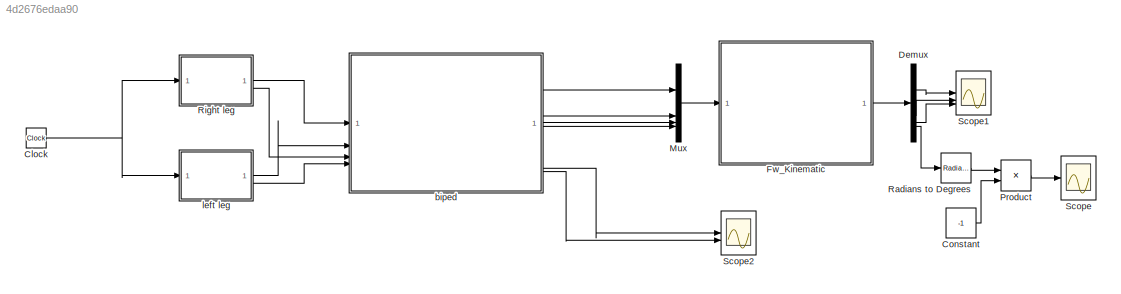
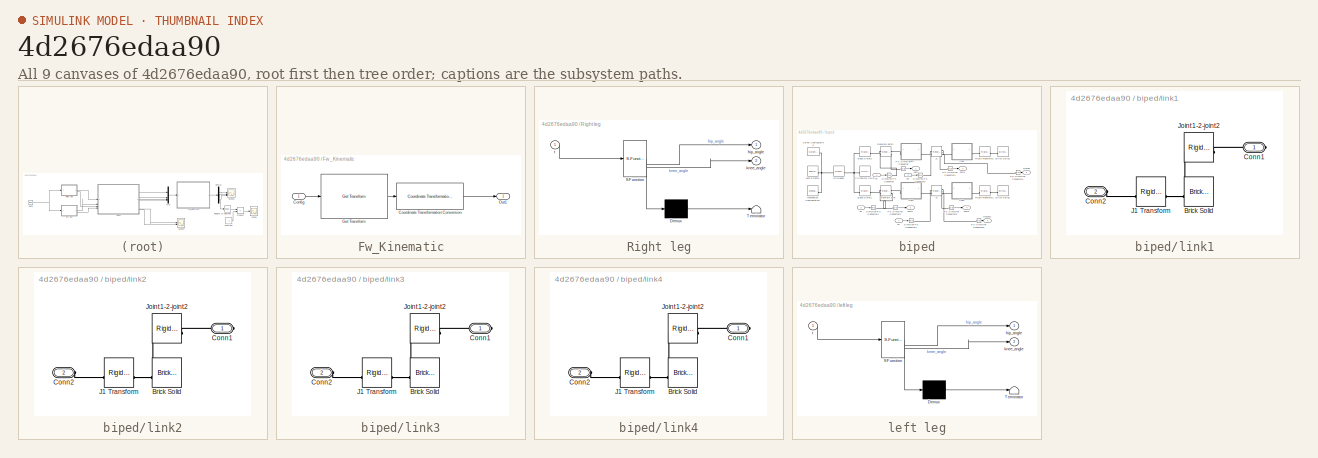
[diagram: thumbnail index - all 9 canvases of the model, root first then tree order]
MODEL slx_4d2676edaa90
KIND model
CONFIG AbsTol = auto
CONFIG EnableMultiTasking = off
CONFIG FixedStep = auto
CONFIG MaxStep = auto
CONFIG MinStep = auto
CONFIG RelTol = 1e-3
CONFIG SampleTimeConstraint = Unconstrained
CONFIG SolverName = VariableStepAuto
CONFIG StartTime = 0.0
CONFIG StopTime = 10
BLOCK [Clock] Clock
BLOCK [Constant] Constant
  Value = -1
BLOCK [Demux] Demux
BLOCK [SubSystem] Fw_Kinematic
BLOCK [Inport] Fw_Kinematic/Config
BLOCK [Reference] Fw_Kinematic/Coordinate Transformation Conversion  REF=robotcorelib/Coordinate Transformation Conversion
  LibrarySourceBlock = robotutilslib/Coordinate Transformation Conversion
  SourceBlock = robotcorelib/Coordinate Transformation Conversion
  SourceType = robotics.slcore.internal.block.CoordinateTransformationConversion
BLOCK [Reference] Fw_Kinematic/Get Transform  REF=robotmaniplib/Get Transform
  SourceBlock = robotmaniplib/Get Transform
  SourceType = Get Transform
BLOCK [Outport] Fw_Kinematic/Out1
BLOCK [Mux] Mux
  DisplayOption = bar
BLOCK [Product] Product
BLOCK [Reference] Radians to Degrees  REF=simulink_extras/Transformations/Radians
to Degrees
  SourceBlock = simulink_extras/Transformations/Radians\nto Degrees
  SourceType = RadiansToDegrees
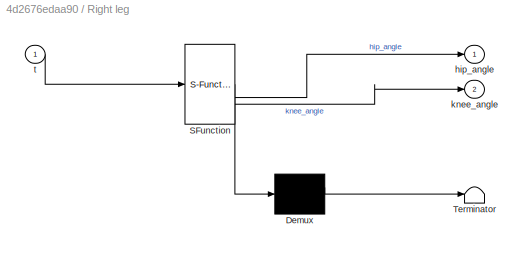
BLOCK [SubSystem] Right leg
  ErrorFcn = Stateflow.Translate.translate
  PermitHierarchicalResolution = ExplicitOnly
  SFBlockType = MATLAB Function
  TreatAsAtomicUnit = on
BLOCK [Demux] Right leg/ Demux 
  Outputs = 1
BLOCK [S-Function] Right leg/ SFunction 
  EnableBusSupport = on
  FunctionName = sf_sfun
  PortCounts = [1 3]
  SFcnIsStateOwnerBlock = off
  SFunctionDeploymentMode = off
  Tag = Stateflow S-Function 2
BLOCK [Terminator] Right leg/ Terminator 
BLOCK [Outport] Right leg/hip_angle
BLOCK [Outport] Right leg/knee_angle
  Port = 2
BLOCK [Inport] Right leg/t
BLOCK [Scope] Scope
  Floating = off
  NumInputPorts = 1
  ScopeSpecificationString = Simulink.scopes.TimeScopeBlockCfg('CurrentConfiguration', extmgr.ConfigurationSet(extmgr.Configuration('Core','General UI',true),extmgr.Configuration('Core','Source UI',true),extmgr.Configuration('Sources','WiredSimulink',true),extmgr.Configuration('Visuals','Time Domain',true,'SerializedDisplays',{struct('MinYLimReal','-186.07636','MaxYLimReal','-125.17572','YLabelReal','','MinYLimMag',' 0.00000'...<+1780ch>
BLOCK [Scope] Scope1
  Floating = off
  NumInputPorts = 3
  ScopeSpecificationString = Simulink.scopes.TimeScopeBlockCfg('CurrentConfiguration', extmgr.ConfigurationSet(extmgr.Configuration('Core','General UI',true),extmgr.Configuration('Core','Source UI',true),extmgr.Configuration('Sources','WiredSimulink',true,'DataLoggingVariableName','ScopeData1'),extmgr.Configuration('Visuals','Time Domain',true,'SerializedDisplays',{struct('MinYLimReal','-0.0000000000000000000000000000023','Ma...<+3332ch>
BLOCK [Scope] Scope2
  Floating = off
  NumInputPorts = 2
  ScopeSpecificationString = Simulink.scopes.TimeScopeBlockCfg('CurrentConfiguration', extmgr.ConfigurationSet(extmgr.Configuration('Core','General UI',true),extmgr.Configuration('Core','Source UI',true),extmgr.Configuration('Sources','WiredSimulink',true,'DataLoggingVariableName','ScopeData2'),extmgr.Configuration('Visuals','Time Domain',true,'SerializedDisplays',{struct('MinYLimReal','-0.54731','MaxYLimReal','0.09637','YLab...<+3317ch>
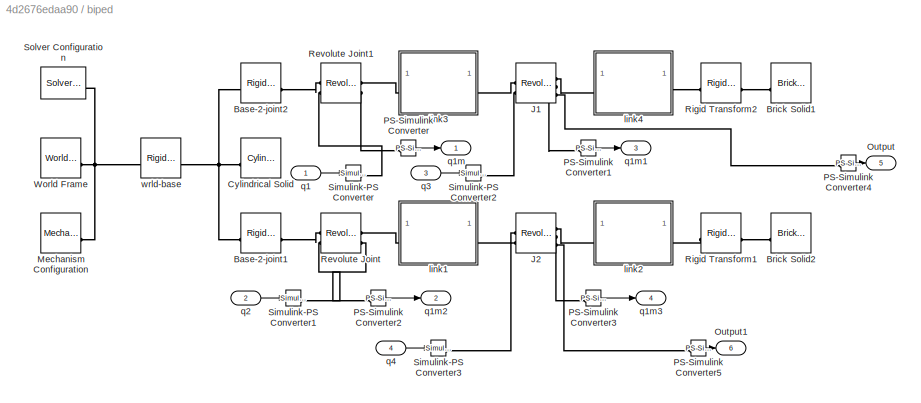
BLOCK [SubSystem] biped
BLOCK [Reference] biped/Base-2-joint1  REF=sm_lib/Frames and
Transforms/Rigid
Transform
  SourceBlock = sm_lib/Frames and\nTransforms/Rigid\nTransform
  SourceType = Rigid\nTransform
BLOCK [Reference] biped/Base-2-joint2  REF=sm_lib/Frames and
Transforms/Rigid
Transform
  SourceBlock = sm_lib/Frames and\nTransforms/Rigid\nTransform
  SourceType = Rigid\nTransform
BLOCK [Reference] biped/Brick Solid1  REF=sm_lib/Body Elements/Brick Solid
  SourceBlock = sm_lib/Body Elements/Brick Solid
  SourceType = Brick Solid
BLOCK [Reference] biped/Brick Solid2  REF=sm_lib/Body Elements/Brick Solid
  SourceBlock = sm_lib/Body Elements/Brick Solid
  SourceType = Brick Solid
BLOCK [Reference] biped/Cylindrical Solid  REF=sm_lib/Body Elements/Cylindrical Solid
  SourceBlock = sm_lib/Body Elements/Cylindrical Solid
  SourceType = Cylindrical Solid
BLOCK [Reference] biped/J1  REF=sm_lib/Joints/Revolute Joint
  SourceBlock = sm_lib/Joints/Revolute Joint
  SourceType = Revolute Joint
BLOCK [Reference] biped/J2  REF=sm_lib/Joints/Revolute Joint
  SourceBlock = sm_lib/Joints/Revolute Joint
  SourceType = Revolute Joint
BLOCK [Reference] biped/Mechanism Configuration  REF=sm_lib/Utilities/Mechanism
Configuration
  SourceBlock = sm_lib/Utilities/Mechanism\nConfiguration
  SourceType = Mechanism\nConfiguration
BLOCK [Outport] biped/Output
  Port = 5
BLOCK [Outport] biped/Output1
  Port = 6
BLOCK [Reference] biped/PS-Simulink Converter  REF=nesl_utility/PS-Simulink
Converter
  SourceBlock = nesl_utility/PS-Simulink\nConverter
  SourceType = PS-Simulink\nConverter
BLOCK [Reference] biped/PS-Simulink Converter1  REF=nesl_utility/PS-Simulink
Converter
  SourceBlock = nesl_utility/PS-Simulink\nConverter
  SourceType = PS-Simulink\nConverter
BLOCK [Reference] biped/PS-Simulink Converter2  REF=nesl_utility/PS-Simulink
Converter
  SourceBlock = nesl_utility/PS-Simulink\nConverter
  SourceType = PS-Simulink\nConverter
BLOCK [Reference] biped/PS-Simulink Converter3  REF=nesl_utility/PS-Simulink
Converter
  SourceBlock = nesl_utility/PS-Simulink\nConverter
  SourceType = PS-Simulink\nConverter
BLOCK [Reference] biped/PS-Simulink Converter4  REF=nesl_utility/PS-Simulink
Converter
  SourceBlock = nesl_utility/PS-Simulink\nConverter
  SourceType = PS-Simulink\nConverter
BLOCK [Reference] biped/PS-Simulink Converter5  REF=nesl_utility/PS-Simulink
Converter
  SourceBlock = nesl_utility/PS-Simulink\nConverter
  SourceType = PS-Simulink\nConverter
BLOCK [Reference] biped/Revolute Joint  REF=sm_lib/Joints/Revolute Joint
  SourceBlock = sm_lib/Joints/Revolute Joint
  SourceType = Revolute Joint
BLOCK [Reference] biped/Revolute Joint1  REF=sm_lib/Joints/Revolute Joint
  SourceBlock = sm_lib/Joints/Revolute Joint
  SourceType = Revolute Joint
BLOCK [Reference] biped/Rigid Transform1  REF=sm_lib/Frames and
Transforms/Rigid
Transform
  SourceBlock = sm_lib/Frames and\nTransforms/Rigid\nTransform
  SourceType = Rigid\nTransform
BLOCK [Reference] biped/Rigid Transform2  REF=sm_lib/Frames and
Transforms/Rigid
Transform
  SourceBlock = sm_lib/Frames and\nTransforms/Rigid\nTransform
  SourceType = Rigid\nTransform
BLOCK [Reference] biped/Simulink-PS Converter  REF=nesl_utility/Simulink-PS
Converter
  SourceBlock = nesl_utility/Simulink-PS\nConverter
  SourceType = Simulink-PS\nConverter
BLOCK [Reference] biped/Simulink-PS Converter1  REF=nesl_utility/Simulink-PS
Converter
  SourceBlock = nesl_utility/Simulink-PS\nConverter
  SourceType = Simulink-PS\nConverter
BLOCK [Reference] biped/Simulink-PS Converter2  REF=nesl_utility/Simulink-PS
Converter
  SourceBlock = nesl_utility/Simulink-PS\nConverter
  SourceType = Simulink-PS\nConverter
BLOCK [Reference] biped/Simulink-PS Converter3  REF=nesl_utility/Simulink-PS
Converter
  SourceBlock = nesl_utility/Simulink-PS\nConverter
  SourceType = Simulink-PS\nConverter
BLOCK [Reference] biped/Solver Configuration  REF=nesl_utility/Solver
Configuration
  SourceBlock = nesl_utility/Solver\nConfiguration
  SourceType = Solver\nConfiguration
BLOCK [Reference] biped/World Frame  REF=sm_lib/Frames and
Transforms/World Frame
  SourceBlock = sm_lib/Frames and\nTransforms/World Frame
  SourceType = World Frame
BLOCK [SubSystem] biped/link1
BLOCK [Reference] biped/link1/Brick Solid  REF=sm_lib/Body Elements/Brick Solid
  SourceBlock = sm_lib/Body Elements/Brick Solid
  SourceType = Brick Solid
BLOCK [PMIOPort] biped/link1/Conn1
  Side = Right
BLOCK [PMIOPort] biped/link1/Conn2
  Port = 2
  Side = Left
BLOCK [Reference] biped/link1/J1 Transform  REF=sm_lib/Frames and
Transforms/Rigid
Transform
  SourceBlock = sm_lib/Frames and\nTransforms/Rigid\nTransform
  SourceType = Rigid\nTransform
BLOCK [Reference] biped/link1/Joint1-2-joint2  REF=sm_lib/Frames and
Transforms/Rigid
Transform
  SourceBlock = sm_lib/Frames and\nTransforms/Rigid\nTransform
  SourceType = Rigid\nTransform
BLOCK [SubSystem] biped/link2
BLOCK [Reference] biped/link2/Brick Solid  REF=sm_lib/Body Elements/Brick Solid
  SourceBlock = sm_lib/Body Elements/Brick Solid
  SourceType = Brick Solid
BLOCK [PMIOPort] biped/link2/Conn1
  Side = Right
BLOCK [PMIOPort] biped/link2/Conn2
  Port = 2
  Side = Left
BLOCK [Reference] biped/link2/J1 Transform  REF=sm_lib/Frames and
Transforms/Rigid
Transform
  SourceBlock = sm_lib/Frames and\nTransforms/Rigid\nTransform
  SourceType = Rigid\nTransform
BLOCK [Reference] biped/link2/Joint1-2-joint2  REF=sm_lib/Frames and
Transforms/Rigid
Transform
  SourceBlock = sm_lib/Frames and\nTransforms/Rigid\nTransform
  SourceType = Rigid\nTransform
BLOCK [SubSystem] biped/link3
BLOCK [Reference] biped/link3/Brick Solid  REF=sm_lib/Body Elements/Brick Solid
  SourceBlock = sm_lib/Body Elements/Brick Solid
  SourceType = Brick Solid
BLOCK [PMIOPort] biped/link3/Conn1
  Side = Right
BLOCK [PMIOPort] biped/link3/Conn2
  Port = 2
  Side = Left
BLOCK [Reference] biped/link3/J1 Transform  REF=sm_lib/Frames and
Transforms/Rigid
Transform
  SourceBlock = sm_lib/Frames and\nTransforms/Rigid\nTransform
  SourceType = Rigid\nTransform
BLOCK [Reference] biped/link3/Joint1-2-joint2  REF=sm_lib/Frames and
Transforms/Rigid
Transform
  SourceBlock = sm_lib/Frames and\nTransforms/Rigid\nTransform
  SourceType = Rigid\nTransform
BLOCK [SubSystem] biped/link4
BLOCK [Reference] biped/link4/Brick Solid  REF=sm_lib/Body Elements/Brick Solid
  SourceBlock = sm_lib/Body Elements/Brick Solid
  SourceType = Brick Solid
BLOCK [PMIOPort] biped/link4/Conn1
  Side = Right
BLOCK [PMIOPort] biped/link4/Conn2
  Port = 2
  Side = Left
BLOCK [Reference] biped/link4/J1 Transform  REF=sm_lib/Frames and
Transforms/Rigid
Transform
  SourceBlock = sm_lib/Frames and\nTransforms/Rigid\nTransform
  SourceType = Rigid\nTransform
BLOCK [Reference] biped/link4/Joint1-2-joint2  REF=sm_lib/Frames and
Transforms/Rigid
Transform
  SourceBlock = sm_lib/Frames and\nTransforms/Rigid\nTransform
  SourceType = Rigid\nTransform
BLOCK [Inport] biped/q1
BLOCK [Outport] biped/q1m
BLOCK [Outport] biped/q1m1
  Port = 3
BLOCK [Outport] biped/q1m2
  Port = 2
BLOCK [Outport] biped/q1m3
  Port = 4
BLOCK [Inport] biped/q2
  Port = 2
BLOCK [Inport] biped/q3
  Port = 3
BLOCK [Inport] biped/q4
  Port = 4
BLOCK [Reference] biped/wrld-base  REF=sm_lib/Frames and
Transforms/Rigid
Transform
  SourceBlock = sm_lib/Frames and\nTransforms/Rigid\nTransform
  SourceType = Rigid\nTransform
BLOCK [SubSystem] left leg
  ErrorFcn = Stateflow.Translate.translate
  PermitHierarchicalResolution = ExplicitOnly
  SFBlockType = MATLAB Function
  TreatAsAtomicUnit = on
BLOCK [Demux] left leg/ Demux 
  Outputs = 1
BLOCK [S-Function] left leg/ SFunction 
  EnableBusSupport = on
  FunctionName = sf_sfun
  PortCounts = [1 3]
  SFcnIsStateOwnerBlock = off
  SFunctionDeploymentMode = off
  Tag = Stateflow S-Function 1
BLOCK [Terminator] left leg/ Terminator 
BLOCK [Outport] left leg/hip_angle
BLOCK [Outport] left leg/knee_angle
  Port = 2
BLOCK [Inport] left leg/t
NET Clock:1 -> Right leg:1, left leg:1
LINE Constant:1 -> Product:2
LINE Demux:1 -> Scope1:1
LINE Demux:2 -> Scope1:2
LINE Demux:3 -> Scope1:3
LINE Demux:4 -> Radians to Degrees:1
LINE Fw_Kinematic/Config:1 -> Fw_Kinematic/Get Transform:1
LINE Fw_Kinematic/Coordinate Transformation Conversion:1 -> Fw_Kinematic/Out1:1
LINE Fw_Kinematic/Get Transform:1 -> Fw_Kinematic/Coordinate Transformation Conversion:1
LINE Fw_Kinematic:1 -> Demux:1
LINE Mux:1 -> Fw_Kinematic:1
LINE Product:1 -> Scope:1
LINE Radians to Degrees:1 -> Product:1
LINE Right leg:1 -> biped:1
LINE Right leg:2 -> biped:3
LINE biped/PS-Simulink Converter1:1 -> biped/q1m1:1
LINE biped/PS-Simulink Converter2:1 -> biped/q1m2:1
LINE biped/PS-Simulink Converter3:1 -> biped/q1m3:1
LINE biped/PS-Simulink Converter4:1 -> biped/Output:1
LINE biped/PS-Simulink Converter5:1 -> biped/Output1:1
LINE biped/PS-Simulink Converter:1 -> biped/q1m:1
LINE biped/q1:1 -> biped/Simulink-PS Converter:1
LINE biped/q2:1 -> biped/Simulink-PS Converter1:1
LINE biped/q3:1 -> biped/Simulink-PS Converter2:1
LINE biped/q4:1 -> biped/Simulink-PS Converter3:1
LINE biped:1 -> Mux:1
LINE biped:2 -> Mux:2
LINE biped:3 -> Mux:3
LINE biped:4 -> Mux:4
LINE biped:5 -> Scope2:1
LINE biped:6 -> Scope2:2
LINE left leg:1 -> biped:2
LINE left leg:2 -> biped:4
PNET net1: biped/Base-2-joint1:LConn1 -- biped/Base-2-joint2:LConn1 -- biped/Cylindrical Solid:RConn1 -- biped/wrld-base:RConn1
PLINE biped/Base-2-joint1:RConn1 -- biped/Revolute Joint:LConn1
PLINE biped/Base-2-joint2:RConn1 -- biped/Revolute Joint1:LConn1
PLINE biped/Brick Solid1:RConn1 -- biped/Rigid Transform2:RConn1
PLINE biped/Brick Solid2:RConn1 -- biped/Rigid Transform1:RConn1
PLINE biped/J1:LConn1 -- biped/link3:RConn1
PLINE biped/J1:LConn2 -- biped/Simulink-PS Converter2:RConn1
PLINE biped/J1:RConn1 -- biped/link4:LConn1
PLINE biped/J1:RConn2 -- biped/PS-Simulink Converter1:LConn1
PLINE biped/J1:RConn3 -- biped/PS-Simulink Converter4:LConn1
PLINE biped/J2:LConn1 -- biped/link1:RConn1
PLINE biped/J2:LConn2 -- biped/Simulink-PS Converter3:RConn1
PLINE biped/J2:RConn1 -- biped/link2:LConn1
PLINE biped/J2:RConn2 -- biped/PS-Simulink Converter3:LConn1
PLINE biped/J2:RConn3 -- biped/PS-Simulink Converter5:LConn1
PNET net2: biped/Mechanism Configuration:RConn1 -- biped/Solver Configuration:RConn1 -- biped/World Frame:RConn1 -- biped/wrld-base:LConn1
PLINE biped/PS-Simulink Converter2:LConn1 -- biped/Revolute Joint:RConn2
PLINE biped/PS-Simulink Converter:LConn1 -- biped/Revolute Joint1:RConn2
PLINE biped/Revolute Joint1:LConn2 -- biped/Simulink-PS Converter:RConn1
PLINE biped/Revolute Joint1:RConn1 -- biped/link3:LConn1
PLINE biped/Revolute Joint:LConn2 -- biped/Simulink-PS Converter1:RConn1
PLINE biped/Revolute Joint:RConn1 -- biped/link1:LConn1
PLINE biped/Rigid Transform1:LConn1 -- biped/link2:RConn1
PLINE biped/Rigid Transform2:LConn1 -- biped/link4:RConn1
PNET net3: biped/link1/Brick Solid:RConn1 -- biped/link1/J1 Transform:RConn1 -- biped/link1/Joint1-2-joint2:LConn1
PLINE biped/link1/Conn1:RConn1 -- biped/link1/Joint1-2-joint2:RConn1
PLINE biped/link1/Conn2:RConn1 -- biped/link1/J1 Transform:LConn1
PNET net4: biped/link2/Brick Solid:RConn1 -- biped/link2/J1 Transform:RConn1 -- biped/link2/Joint1-2-joint2:LConn1
PLINE biped/link2/Conn1:RConn1 -- biped/link2/Joint1-2-joint2:RConn1
PLINE biped/link2/Conn2:RConn1 -- biped/link2/J1 Transform:LConn1
PNET net5: biped/link3/Brick Solid:RConn1 -- biped/link3/J1 Transform:RConn1 -- biped/link3/Joint1-2-joint2:LConn1
PLINE biped/link3/Conn1:RConn1 -- biped/link3/Joint1-2-joint2:RConn1
PLINE biped/link3/Conn2:RConn1 -- biped/link3/J1 Transform:LConn1
PNET net6: biped/link4/Brick Solid:RConn1 -- biped/link4/J1 Transform:RConn1 -- biped/link4/Joint1-2-joint2:LConn1
PLINE biped/link4/Conn1:RConn1 -- biped/link4/Joint1-2-joint2:RConn1
PLINE biped/link4/Conn2:RConn1 -- biped/link4/J1 Transform:LConn1
note: NET lines group one-source signal fan-out (src -> all destinations, sorted); 1:1 wires keep LINE; PNET lines group multi-terminal physical nets as a canonical sorted terminal list (undirected conserving connections); 2-terminal nets keep the pairwise PLINE form
CHART Right leg states=1 transitions=1
  STATE_LABEL 'eML_blk_kernel()'
  STATE_LABEL 'SCRIPT:\nfunction [hip_angle, knee_angle]= fcn(t)\nT = 10;\nknee_angle_deg = 27 + 30*sin(2*pi*t/T) + 10*sin(4*pi*t/T);\n\nA0 = 5;                 \nA1 = 20;                \nA2 = 5;                  \nphi1 = -pi/4;           \nphi2 = -pi/2;\nhip_angle_deg = A0 + A1*sin(2*pi*t/T + phi1) + A2*sin(4*pi*t/T + phi2);\n\nhip_angle =  -deg2rad(hip_angle_deg + 90);\nknee_angle = -deg2rad(knee_angle_deg);'
CHART left leg states=1 transitions=1
  STATE_LABEL 'eML_blk_kernel()'
  STATE_LABEL 'SCRIPT:\nfunction [hip_angle, knee_angle]= fcn(t)\nT = 10;\nknee_angle_deg = 30 + 30*sin(2*pi*t/T + pi) + 10*sin(4*pi*t/T + pi);\n\nA0 = 10;                 \nA1 = 25;                \nA2 = 5;                  \nphi1 = -pi/4;           \nphi2 = -pi/2;\nhip_angle_deg = A0 + A1*sin(2*pi*t/T + phi1 + pi) + A2*sin(4*pi*t/T + phi2 + pi);\n\nhip_angle =  -deg2rad(hip_angle_deg + 90);\nknee_angle =  -deg2rad(knee_ang...<+8ch>'
CHART  states=0 transitions=0
CHART  states=0 transitions=0
